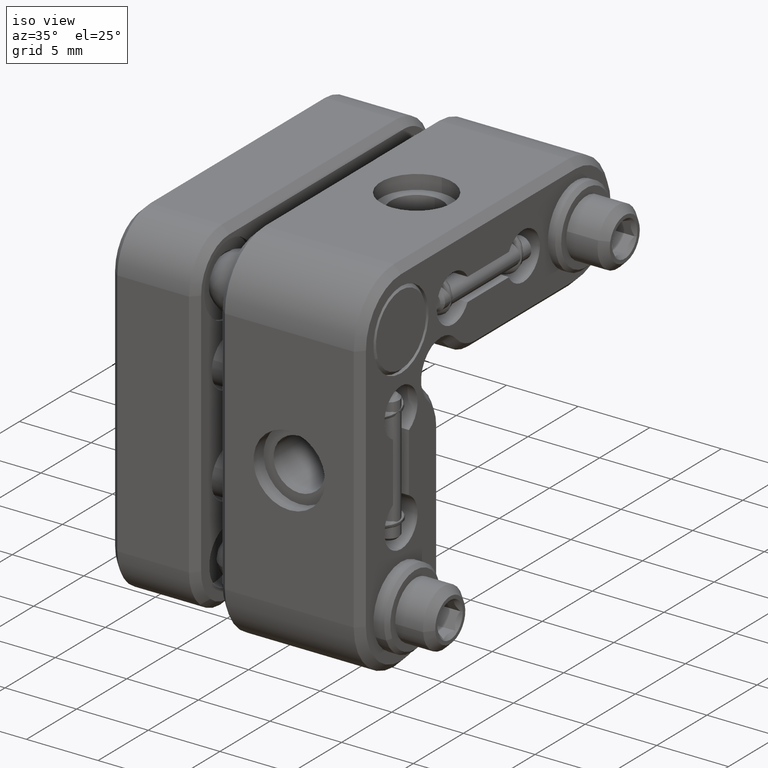
[diagram: clean part render]
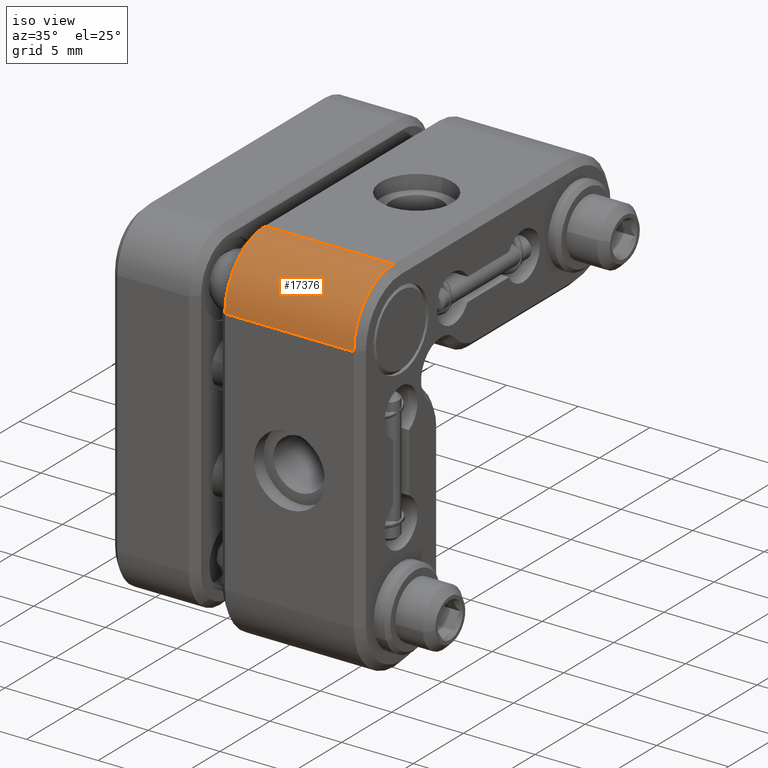
[diagram: same view with one face highlighted and labeled with its STEP entity id]
A machine part, iso view. The second image highlights one B-rep face of the part: STEP entity #17376.
In plain terms, the highlighted cylindrical surface (partial cylindrical patch) has radius 4 mm, axis along (-1, -0, -0).
Its self-contained STEP definition (entity closure, byte-faithful):
#403 = VECTOR ( 'NONE', #5728, 1000.000000000000000 ) ;
#436 = CIRCLE ( 'NONE', #2414, 4.000000000000000888 ) ;
#1971 = DIRECTION ( 'NONE',  ( 1.000000000000000000, 8.833440731914468542E-23, 5.569080924222307690E-23 ) ) ;
#2163 = CYLINDRICAL_SURFACE ( 'NONE', #4138, 4.000000000000000888 ) ;
#2414 = AXIS2_PLACEMENT_3D ( 'NONE', #8287, #20553, #13589 ) ;
#3151 = CARTESIAN_POINT ( 'NONE',  ( 27.84426557823278969, 4.000000000000005329, -2.599999999999991207 ) ) ;
#3407 = VERTEX_POINT ( 'NONE', #20144 ) ;
#4010 = CARTESIAN_POINT ( 'NONE',  ( 27.84426557823278969, 4.000000000000007105, 1.400000000000010569 ) ) ;
#4138 = AXIS2_PLACEMENT_3D ( 'NONE', #3151, #5124, #20926 ) ;
#4998 = VERTEX_POINT ( 'NONE', #7359 ) ;
#5107 = CARTESIAN_POINT ( 'NONE',  ( 18.34426557823279325, 4.000000000000005329, -2.599999999999991207 ) ) ;
#5124 = DIRECTION ( 'NONE',  ( -1.000000000000000000, -8.833440731914468542E-23, -5.569080924222307690E-23 ) ) ;
#5728 = DIRECTION ( 'NONE',  ( -1.000000000000000000, -8.833440731914468542E-23, -5.569080924222307690E-23 ) ) ;
#7359 = CARTESIAN_POINT ( 'NONE',  ( 27.34426557823277193, 4.000000000000007105, 1.400000000000010569 ) ) ;
#7861 = AXIS2_PLACEMENT_3D ( 'NONE', #5107, #10399, #19127 ) ;
#8287 = CARTESIAN_POINT ( 'NONE',  ( 27.34426557823277193, 4.000000000000005329, -2.599999999999991207 ) ) ;
#8772 = EDGE_LOOP ( 'NONE', ( #19676, #15958, #17320, #9532 ) ) ;
#8812 = FACE_OUTER_BOUND ( 'NONE', #8772, .T. ) ;
#8879 = CARTESIAN_POINT ( 'NONE',  ( 18.34426557823279325, 3.469446951953614189E-15, -2.599999999999989431 ) ) ;
#9532 = ORIENTED_EDGE ( 'NONE', *, *, #13878, .T. ) ;
#10388 = LINE ( 'NONE', #16230, #403 ) ;
#10399 = DIRECTION ( 'NONE',  ( 1.000000000000000000, 8.833440731914468542E-23, 5.569080924222307690E-23 ) ) ;
#11035 = LINE ( 'NONE', #4010, #13477 ) ;
#13477 = VECTOR ( 'NONE', #1971, 1000.000000000000000 ) ;
#13589 = DIRECTION ( 'NONE',  ( 0.0000000000000000000, 8.673617379884033500E-16, 1.000000000000000000 ) ) ;
#13878 = EDGE_CURVE ( 'NONE', #3407, #19223, #20339, .T. ) ;
#14594 = EDGE_CURVE ( 'NONE', #17585, #4998, #436, .T. ) ;
#15958 = ORIENTED_EDGE ( 'NONE', *, *, #14594, .T. ) ;
#16230 = CARTESIAN_POINT ( 'NONE',  ( 27.84426557823278969, 3.469446951953614189E-15, -2.599999999999989431 ) ) ;
#17320 = ORIENTED_EDGE ( 'NONE', *, *, #19927, .F. ) ;
#17376 = ADVANCED_FACE ( 'NONE', ( #8812 ), #2163, .T. ) ;
#17585 = VERTEX_POINT ( 'NONE', #20110 ) ;
#19127 = DIRECTION ( 'NONE',  ( 0.0000000000000000000, 0.0000000000000000000, 1.000000000000000000 ) ) ;
#19223 = VERTEX_POINT ( 'NONE', #8879 ) ;
#19676 = ORIENTED_EDGE ( 'NONE', *, *, #21217, .F. ) ;
#19927 = EDGE_CURVE ( 'NONE', #3407, #4998, #11035, .T. ) ;
#20110 = CARTESIAN_POINT ( 'NONE',  ( 27.34426557823277193, 3.469446951953614189E-15, -2.599999999999989431 ) ) ;
#20144 = CARTESIAN_POINT ( 'NONE',  ( 18.34426557823279325, 4.000000000000007105, 1.400000000000010569 ) ) ;
#20339 = CIRCLE ( 'NONE', #7861, 4.000000000000000888 ) ;
#20553 = DIRECTION ( 'NONE',  ( -1.000000000000000000, -8.833440731914468542E-23, -5.569080924222307690E-23 ) ) ;
#20926 = DIRECTION ( 'NONE',  ( 0.0000000000000000000, 0.0000000000000000000, -1.000000000000000000 ) ) ;
#21217 = EDGE_CURVE ( 'NONE', #17585, #19223, #10388, .T. ) ;